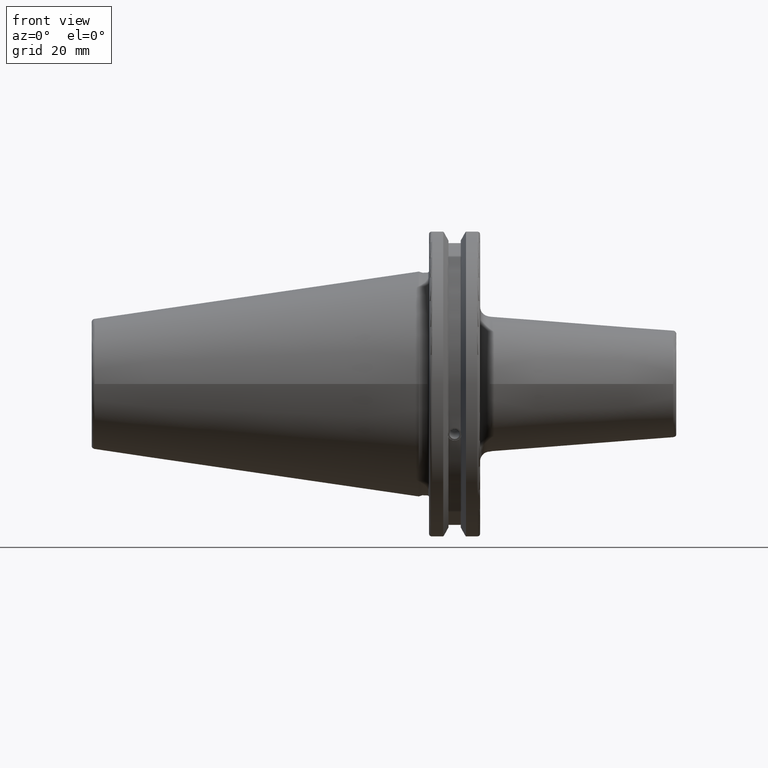
[diagram: clean part render]
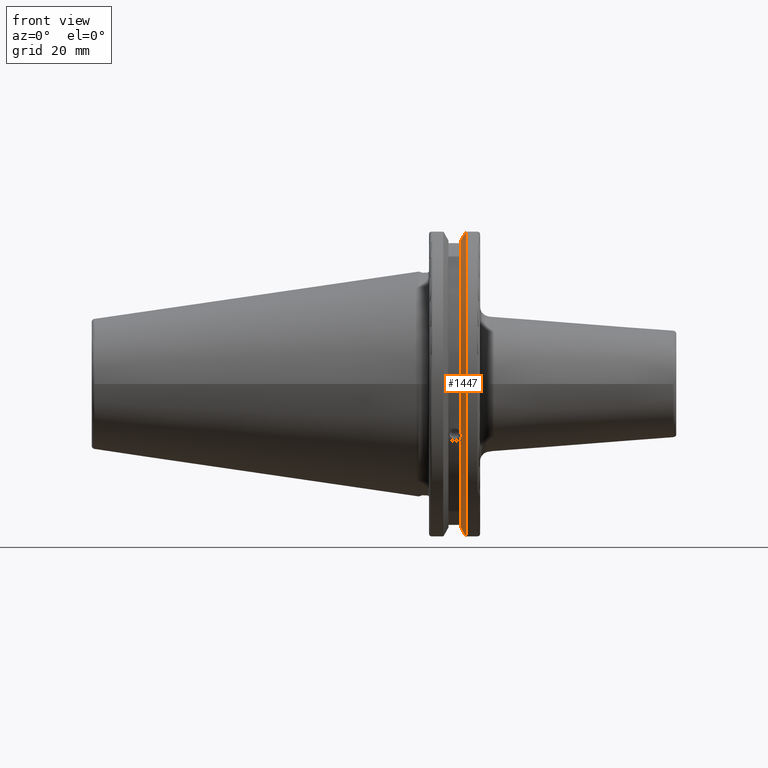
[diagram: same view with one face highlighted and labeled with its STEP entity id]
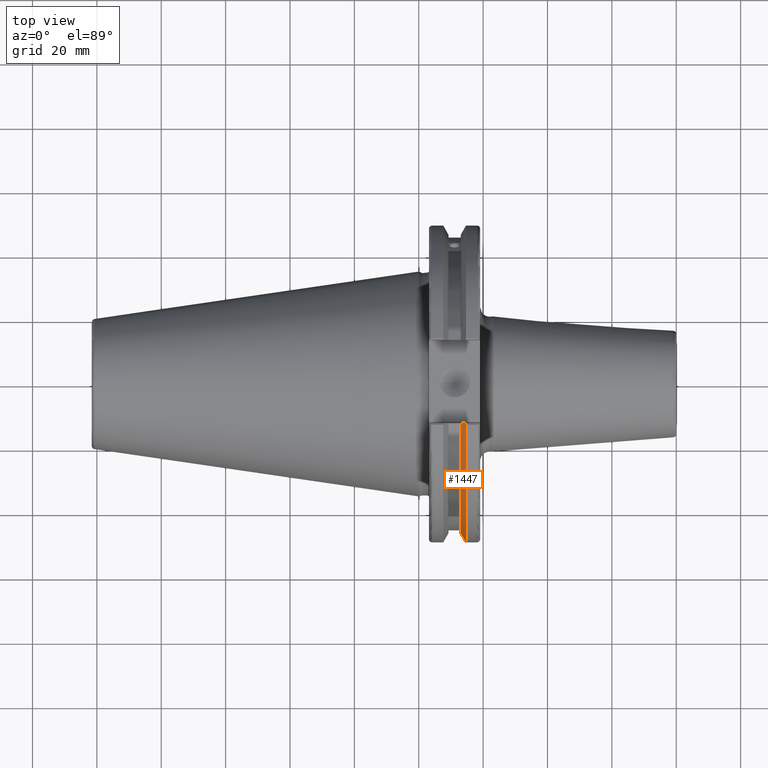
[diagram: same view with one face highlighted and labeled with its STEP entity id]
A machine part, front view. The second image highlights one B-rep face of the part: STEP entity #1447.
A second angle (top view) of the same face is appended — the face is thin or edge-on in the first view.
In plain terms, the highlighted conical surface has half-angle 60 deg.
Its self-contained STEP definition (entity closure, byte-faithful):
#15=(
BOUNDED_CURVE()
B_SPLINE_CURVE(2,(#2460,#2461,#2462),.UNSPECIFIED.,.F.,.F.)
B_SPLINE_CURVE_WITH_KNOTS((3,3),(0.,0.275823910673374),.UNSPECIFIED.)
CURVE()
GEOMETRIC_REPRESENTATION_ITEM()
RATIONAL_B_SPLINE_CURVE((1.,1.00038235574978,1.00012873636953))
REPRESENTATION_ITEM('')
);
#16=(
BOUNDED_CURVE()
B_SPLINE_CURVE(2,(#2464,#2465,#2466),.UNSPECIFIED.,.F.,.F.)
B_SPLINE_CURVE_WITH_KNOTS((3,3),(0.,0.0648240472896156),.UNSPECIFIED.)
CURVE()
GEOMETRIC_REPRESENTATION_ITEM()
RATIONAL_B_SPLINE_CURVE((1.,1.00011477674884,1.00019140646027))
REPRESENTATION_ITEM('')
);
#17=(
BOUNDED_CURVE()
B_SPLINE_CURVE(2,(#2470,#2471,#2472),.UNSPECIFIED.,.F.,.F.)
B_SPLINE_CURVE_WITH_KNOTS((3,3),(0.325260944932494,0.3900849922222),
 .UNSPECIFIED.)
CURVE()
GEOMETRIC_REPRESENTATION_ITEM()
RATIONAL_B_SPLINE_CURVE((1.00019140645961,1.00011477674844,1.))
REPRESENTATION_ITEM('')
);
#18=(
BOUNDED_CURVE()
B_SPLINE_CURVE(2,(#2474,#2475,#2476),.UNSPECIFIED.,.F.,.F.)
B_SPLINE_CURVE_WITH_KNOTS((3,3),(0.0558332664531015,0.331657177124503),
 .UNSPECIFIED.)
CURVE()
GEOMETRIC_REPRESENTATION_ITEM()
RATIONAL_B_SPLINE_CURVE((1.00012873636668,1.00038235574129,1.))
REPRESENTATION_ITEM('')
);
#41=B_SPLINE_CURVE_WITH_KNOTS('',3,(#2369,#2370,#2371,#2372,#2373,#2374,
#2375,#2376),.UNSPECIFIED.,.F.,.F.,(4,2,2,4),(0.42671286835872,0.441644498666905,
0.480313313223129,0.518982127779353),.UNSPECIFIED.);
#45=B_SPLINE_CURVE_WITH_KNOTS('',3,(#2431,#2432,#2433,#2434,#2435,#2436,
#2437,#2438),.UNSPECIFIED.,.F.,.F.,(4,2,2,4),(0.518982127779353,0.557650942335576,
0.5963197568918,0.611251387199985),.UNSPECIFIED.);
#74=CONICAL_SURFACE('',#1583,47.8172386482472,1.0471975511966);
#368=FACE_OUTER_BOUND('',#462,.T.);
#462=EDGE_LOOP('',(#1089,#1090,#1091,#1092,#1093,#1094,#1095,#1096,#1097));
#562=CIRCLE('',#1584,46.4219772964944);
#563=CIRCLE('',#1585,49.2125);
#564=CIRCLE('',#1586,46.4219772964944);
#648=VERTEX_POINT('',#2366);
#649=VERTEX_POINT('',#2368);
#656=VERTEX_POINT('',#2429);
#662=VERTEX_POINT('',#2457);
#663=VERTEX_POINT('',#2459);
#664=VERTEX_POINT('',#2463);
#665=VERTEX_POINT('',#2467);
#666=VERTEX_POINT('',#2469);
#667=VERTEX_POINT('',#2473);
#809=EDGE_CURVE('',#649,#648,#41,.T.);
#817=EDGE_CURVE('',#648,#656,#45,.T.);
#825=EDGE_CURVE('',#656,#662,#562,.T.);
#826=EDGE_CURVE('',#662,#663,#15,.T.);
#827=EDGE_CURVE('',#664,#663,#16,.T.);
#828=EDGE_CURVE('',#665,#664,#563,.T.);
#829=EDGE_CURVE('',#666,#665,#17,.T.);
#830=EDGE_CURVE('',#666,#667,#18,.T.);
#831=EDGE_CURVE('',#667,#649,#564,.T.);
#1089=ORIENTED_EDGE('',*,*,#809,.T.);
#1090=ORIENTED_EDGE('',*,*,#817,.T.);
#1091=ORIENTED_EDGE('',*,*,#825,.T.);
#1092=ORIENTED_EDGE('',*,*,#826,.T.);
#1093=ORIENTED_EDGE('',*,*,#827,.F.);
#1094=ORIENTED_EDGE('',*,*,#828,.F.);
#1095=ORIENTED_EDGE('',*,*,#829,.F.);
#1096=ORIENTED_EDGE('',*,*,#830,.T.);
#1097=ORIENTED_EDGE('',*,*,#831,.T.);
#1447=ADVANCED_FACE('',(#368),#74,.T.);
#1583=AXIS2_PLACEMENT_3D('',#2456,#1823,#1824);
#1584=AXIS2_PLACEMENT_3D('',#2458,#1825,#1826);
#1585=AXIS2_PLACEMENT_3D('',#2468,#1827,#1828);
#1586=AXIS2_PLACEMENT_3D('',#2477,#1829,#1830);
#1823=DIRECTION('center_axis',(1.,0.,0.));
#1824=DIRECTION('ref_axis',(0.,-1.,-1.22464679914735E-16));
#1825=DIRECTION('center_axis',(1.,0.,0.));
#1826=DIRECTION('ref_axis',(0.,0.,-1.));
#1827=DIRECTION('center_axis',(1.,0.,0.));
#1828=DIRECTION('ref_axis',(0.,0.,-1.));
#1829=DIRECTION('center_axis',(1.,0.,0.));
#1830=DIRECTION('ref_axis',(0.,0.,-1.));
#2366=CARTESIAN_POINT('',(13.2341,-43.923494649906,-15.9868446375166));
#2368=CARTESIAN_POINT('',(13.0491,-43.9096390749305,-15.0646464421033));
#2369=CARTESIAN_POINT('Ctrl Pts',(13.0491,-43.9096390749305,-15.0646464421033));
#2370=CARTESIAN_POINT('Ctrl Pts',(13.0660815609661,-43.9250360001461,-15.1104047527575));
#2371=CARTESIAN_POINT('Ctrl Pts',(13.0821132459668,-43.9385582852181,-15.1564111356409));
#2372=CARTESIAN_POINT('Ctrl Pts',(13.1358132615496,-43.9797830409459,-15.3217566390708));
#2373=CARTESIAN_POINT('Ctrl Pts',(13.1719838933644,-43.9989016655819,-15.4570249042868));
#2374=CARTESIAN_POINT('Ctrl Pts',(13.2212913174802,-43.9931221605126,-15.7289849146254));
#2375=CARTESIAN_POINT('Ctrl Pts',(13.2341,-43.9675796948952,-15.8657219718732));
#2376=CARTESIAN_POINT('Ctrl Pts',(13.2341,-43.923494649906,-15.9868446375166));
#2429=CARTESIAN_POINT('',(13.0491,-43.3201030900029,-16.6843832486479));
#2431=CARTESIAN_POINT('Ctrl Pts',(13.2341,-43.923494649906,-15.9868446375166));
#2432=CARTESIAN_POINT('Ctrl Pts',(13.2341,-43.8794096049169,-16.10796730316));
#2433=CARTESIAN_POINT('Ctrl Pts',(13.2212913174802,-43.8110833825827,-16.2291323464527));
#2434=CARTESIAN_POINT('Ctrl Pts',(13.1719838933644,-43.6406982153492,-16.441180795372));
#2435=CARTESIAN_POINT('Ctrl Pts',(13.1358132615496,-43.5391037343221,-16.5325130832406));
#2436=CARTESIAN_POINT('Ctrl Pts',(13.0821132459668,-43.4012416983557,-16.6326763251437));
#2437=CARTESIAN_POINT('Ctrl Pts',(13.0660815609661,-43.3613106941341,-16.6592273018006));
#2438=CARTESIAN_POINT('Ctrl Pts',(13.0491,-43.3201030900029,-16.6843832486479));
#2456=CARTESIAN_POINT('Origin',(13.8546545170244,0.,0.));
#2457=CARTESIAN_POINT('',(13.0491,-12.95,-44.5791147973604));
#2458=CARTESIAN_POINT('Origin',(13.0491,0.,0.));
#2459=CARTESIAN_POINT('',(14.3818103943757,-12.95,-46.9780755322917));
#2460=CARTESIAN_POINT('Ctrl Pts',(13.0491,-12.95,-44.5791147973604));
#2461=CARTESIAN_POINT('Ctrl Pts',(13.697995509466,-12.95,-45.749496680259));
#2462=CARTESIAN_POINT('Ctrl Pts',(14.3818103943757,-12.95,-46.9780755322917));
#2463=CARTESIAN_POINT('',(14.6602090340487,-13.4317035994433,-47.3440544806494));
#2464=CARTESIAN_POINT('Ctrl Pts',(14.6602090340487,-13.4317035994433,-47.3440544806494));
#2465=CARTESIAN_POINT('Ctrl Pts',(14.5199310333617,-13.1896660169964,-47.1601640966263));
#2466=CARTESIAN_POINT('Ctrl Pts',(14.3818103943757,-12.95,-46.9780755322917));
#2467=CARTESIAN_POINT('',(14.6602090340487,-13.4317035994433,47.3440544806494));
#2468=CARTESIAN_POINT('Origin',(14.6602090340487,0.,0.));
#2469=CARTESIAN_POINT('',(14.3818103943757,-12.95,46.9780755322918));
#2470=CARTESIAN_POINT('Ctrl Pts',(14.3818103943757,-12.95,46.9780755322918));
#2471=CARTESIAN_POINT('Ctrl Pts',(14.5199310333617,-13.1896660169966,47.1601640966264));
#2472=CARTESIAN_POINT('Ctrl Pts',(14.6602090340487,-13.4317035994433,47.3440544806494));
#2473=CARTESIAN_POINT('',(13.0491,-12.95,44.5791147973604));
#2474=CARTESIAN_POINT('Ctrl Pts',(14.3818103943757,-12.95,46.9780755322918));
#2475=CARTESIAN_POINT('Ctrl Pts',(13.6979955094846,-12.95,45.7494966802924));
#2476=CARTESIAN_POINT('Ctrl Pts',(13.0491,-12.95,44.5791147973604));
#2477=CARTESIAN_POINT('Origin',(13.0491,0.,0.));